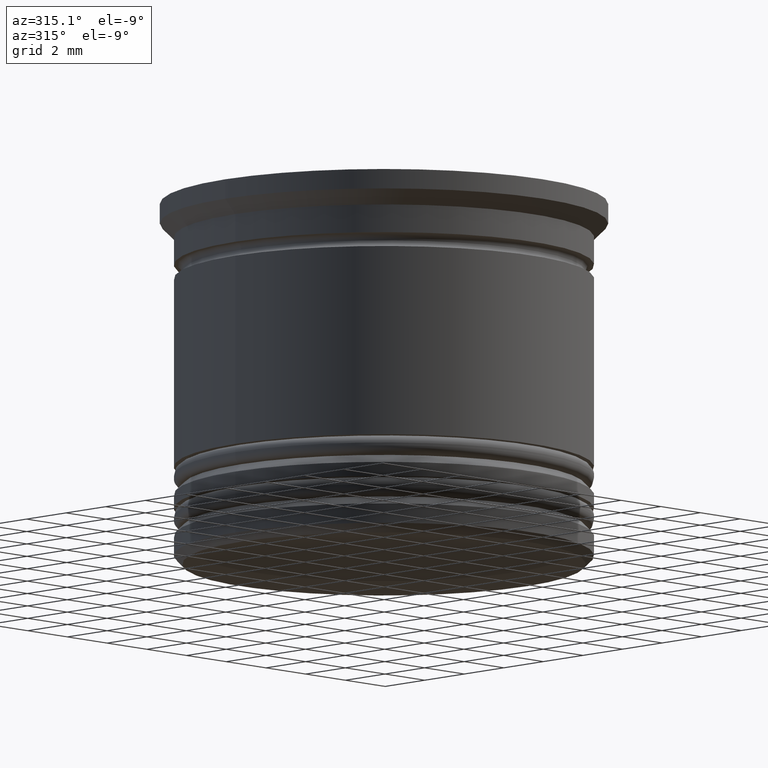
[diagram: clean part render]
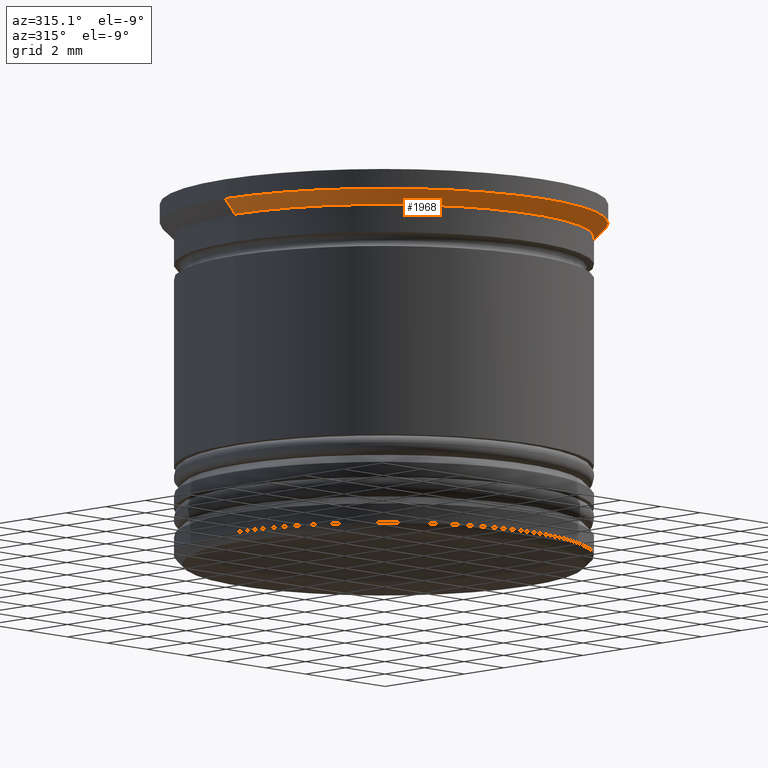
[diagram: same view with one face highlighted and labeled with its STEP entity id]
A machine part, auxiliary view. The second image highlights one B-rep face of the part: STEP entity #1968.
In plain terms, the highlighted conical surface has half-angle 45 deg.
Its self-contained STEP definition (entity closure, byte-faithful):
#59 = EDGE_CURVE ( 'NONE', #728, #1105, #515, .T. ) ;
#167 = VECTOR ( 'NONE', #618, 1000.000000000000000 ) ;
#169 = CONICAL_SURFACE ( 'NONE', #1311, 8.000000000000000000, 0.7853981633974518317 ) ;
#189 = FACE_OUTER_BOUND ( 'NONE', #385, .T. ) ;
#240 = CARTESIAN_POINT ( 'NONE',  ( 0.000000000000000000, 0.000000000000000000, -0.7000000000000005107 ) ) ;
#243 = CARTESIAN_POINT ( 'NONE',  ( -7.499999999999998224, 9.184850993605145972E-16, -1.199999999999999289 ) ) ;
#308 = CARTESIAN_POINT ( 'NONE',  ( 8.000000000000000000, 0.000000000000000000, -0.7000000000000005107 ) ) ;
#322 = DIRECTION ( 'NONE',  ( 1.000000000000000000, 0.000000000000000000, 0.000000000000000000 ) ) ;
#373 = DIRECTION ( 'NONE',  ( -0.000000000000000000, -0.000000000000000000, 1.000000000000000000 ) ) ;
#385 = EDGE_LOOP ( 'NONE', ( #1451, #1363, #1099, #753 ) ) ;
#515 = CIRCLE ( 'NONE', #1977, 7.499999999999998224 ) ;
#546 = EDGE_CURVE ( 'NONE', #1183, #1782, #1441, .T. ) ;
#549 = AXIS2_PLACEMENT_3D ( 'NONE', #240, #990, #1318 ) ;
#602 = CARTESIAN_POINT ( 'NONE',  ( -8.000000000000000000, 9.797174393178825657E-16, -0.7000000000000005107 ) ) ;
#603 = EDGE_CURVE ( 'NONE', #1105, #1782, #1081, .T. ) ;
#618 = DIRECTION ( 'NONE',  ( -0.7071067811865500152, 8.659560562354963673E-17, 0.7071067811865450192 ) ) ;
#728 = VERTEX_POINT ( 'NONE', #243 ) ;
#753 = ORIENTED_EDGE ( 'NONE', *, *, #546, .F. ) ;
#878 = CARTESIAN_POINT ( 'NONE',  ( 7.499999999999998224, 0.000000000000000000, -1.199999999999999289 ) ) ;
#931 = CARTESIAN_POINT ( 'NONE',  ( -8.000000000000000000, 9.797174393178825657E-16, -0.7000000000000005107 ) ) ;
#990 = DIRECTION ( 'NONE',  ( -0.000000000000000000, -0.000000000000000000, 1.000000000000000000 ) ) ;
#1081 = LINE ( 'NONE', #308, #1953 ) ;
#1099 = ORIENTED_EDGE ( 'NONE', *, *, #603, .T. ) ;
#1105 = VERTEX_POINT ( 'NONE', #878 ) ;
#1183 = VERTEX_POINT ( 'NONE', #931 ) ;
#1288 = CARTESIAN_POINT ( 'NONE',  ( 8.000000000000000000, 0.000000000000000000, -0.7000000000000005107 ) ) ;
#1292 = CARTESIAN_POINT ( 'NONE',  ( 0.000000000000000000, 0.000000000000000000, -0.7000000000000005107 ) ) ;
#1311 = AXIS2_PLACEMENT_3D ( 'NONE', #1292, #373, #1867 ) ;
#1318 = DIRECTION ( 'NONE',  ( -1.000000000000000000, 0.000000000000000000, 0.000000000000000000 ) ) ;
#1363 = ORIENTED_EDGE ( 'NONE', *, *, #59, .T. ) ;
#1374 = DIRECTION ( 'NONE',  ( 0.7071067811865500152, 0.000000000000000000, 0.7071067811865450192 ) ) ;
#1441 = CIRCLE ( 'NONE', #549, 8.000000000000000000 ) ;
#1451 = ORIENTED_EDGE ( 'NONE', *, *, #1511, .F. ) ;
#1489 = LINE ( 'NONE', #602, #167 ) ;
#1511 = EDGE_CURVE ( 'NONE', #728, #1183, #1489, .T. ) ;
#1705 = DIRECTION ( 'NONE',  ( -0.000000000000000000, -0.000000000000000000, 1.000000000000000000 ) ) ;
#1782 = VERTEX_POINT ( 'NONE', #1288 ) ;
#1812 = CARTESIAN_POINT ( 'NONE',  ( 0.000000000000000000, 0.000000000000000000, -1.199999999999999289 ) ) ;
#1867 = DIRECTION ( 'NONE',  ( 1.000000000000000000, 0.000000000000000000, 0.000000000000000000 ) ) ;
#1953 = VECTOR ( 'NONE', #1374, 1000.000000000000000 ) ;
#1968 = ADVANCED_FACE ( 'NONE', ( #189 ), #169, .T. ) ;
#1977 = AXIS2_PLACEMENT_3D ( 'NONE', #1812, #1705, #322 ) ;